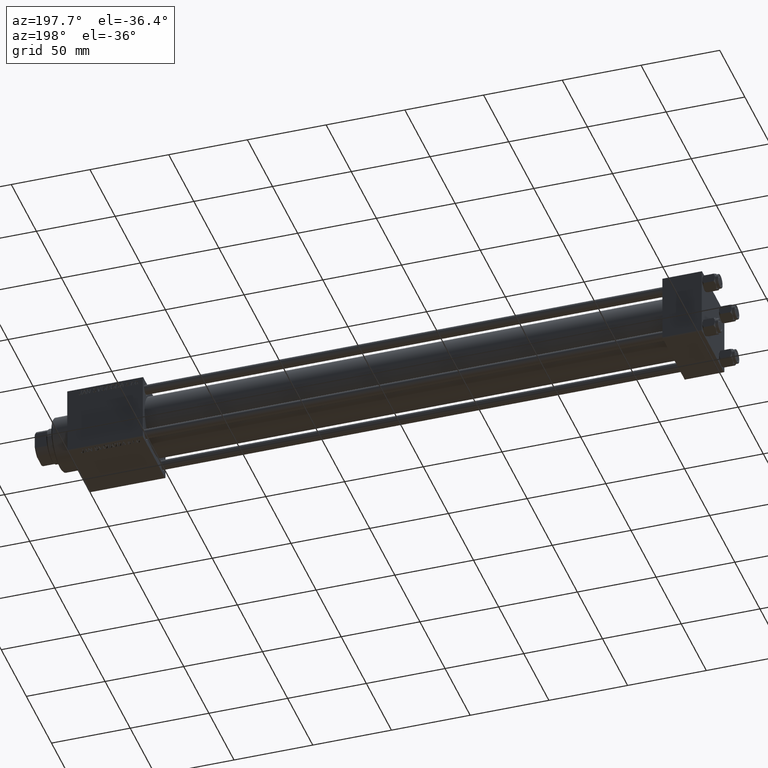
[diagram: clean part render]
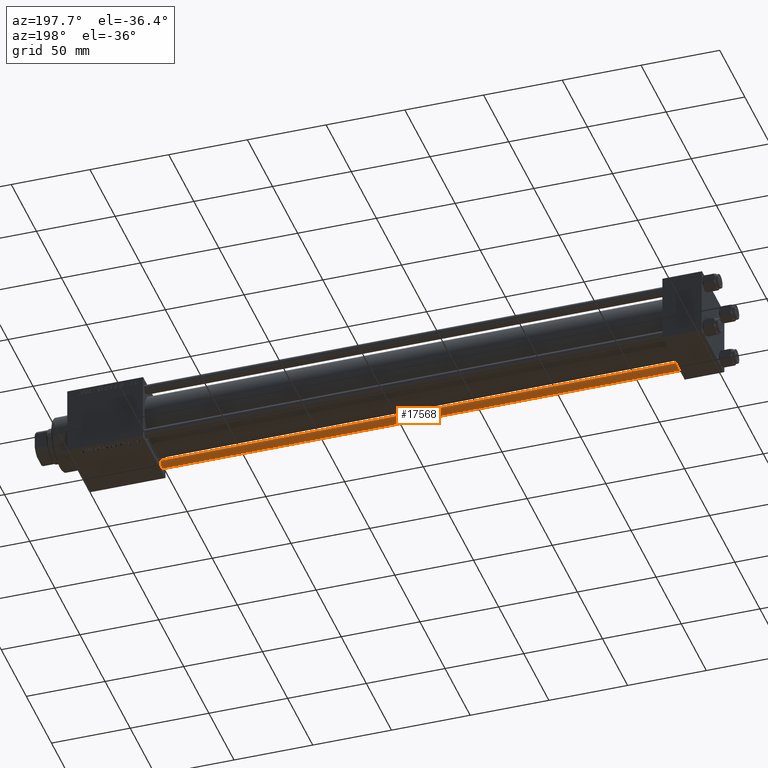
[diagram: same view with one face highlighted and labeled with its STEP entity id]
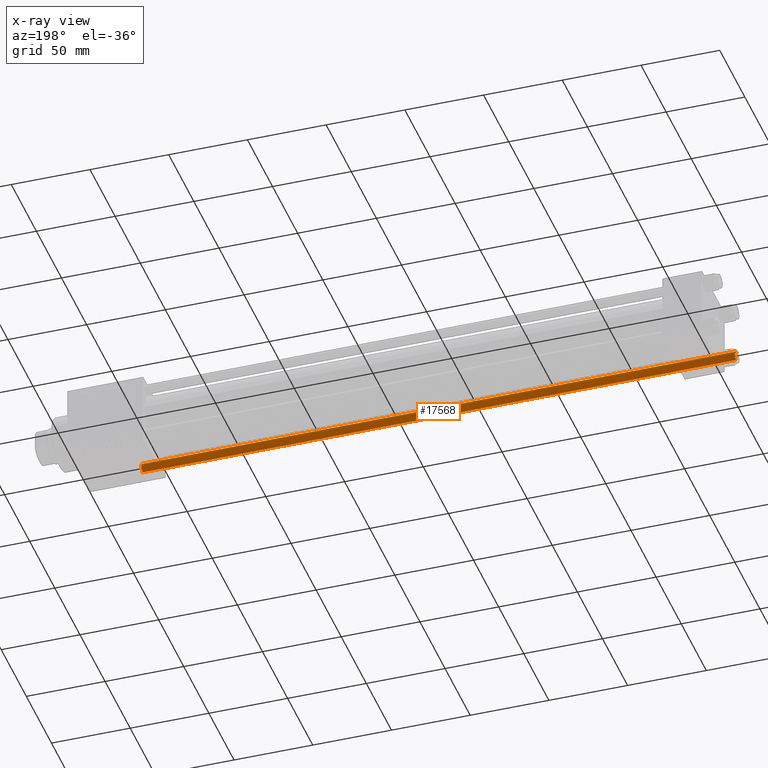
[diagram: x-ray of the same camera — body ghosted, the highlighted face saturated]
A machine part, auxiliary view. The second image highlights one B-rep face of the part: STEP entity #17568.
The next image is the same camera in x-ray: the body ghosted, the highlighted face saturated — about 0% of this face is hidden behind the body in this view.
In plain terms, the highlighted cylindrical surface (edge-blend (fillet) strip) has radius 3 mm, axis along (-1, -0, -0).
Its self-contained STEP definition (entity closure, byte-faithful):
#140 = CARTESIAN_POINT ( 'NONE',  ( -3.000000000000000444, 0.000000000000000000, 378.0000000000000000 ) ) ;
#1564 = CARTESIAN_POINT ( 'NONE',  ( 0.000000000000000000, 0.000000000000000000, 378.0000000000000000 ) ) ;
#1592 = VECTOR ( 'NONE', #48321, 1000.000000000000000 ) ;
#1967 = VERTEX_POINT ( 'NONE', #38825 ) ;
#6675 = AXIS2_PLACEMENT_3D ( 'NONE', #1564, #20859, #32500 ) ;
#7477 = ORIENTED_EDGE ( 'NONE', *, *, #19458, .T. ) ;
#8362 = VERTEX_POINT ( 'NONE', #46407 ) ;
#8747 = CIRCLE ( 'NONE', #13520, 3.000000000000000444 ) ;
#9009 = ORIENTED_EDGE ( 'NONE', *, *, #31446, .T. ) ;
#9580 = CARTESIAN_POINT ( 'NONE',  ( 0.000000000000000000, 0.000000000000000000, 377.5000000000000000 ) ) ;
#11825 = DIRECTION ( 'NONE',  ( -0.000000000000000000, -0.000000000000000000, -1.000000000000000000 ) ) ;
#12981 = CARTESIAN_POINT ( 'NONE',  ( 0.000000000000000000, 0.000000000000000000, 0.5000000000000004441 ) ) ;
#13520 = AXIS2_PLACEMENT_3D ( 'NONE', #9580, #21257, #13893 ) ;
#13893 = DIRECTION ( 'NONE',  ( 1.000000000000000000, 0.000000000000000000, 0.000000000000000000 ) ) ;
#16139 = VERTEX_POINT ( 'NONE', #25252 ) ;
#16807 = FACE_OUTER_BOUND ( 'NONE', #26747, .T. ) ;
#17044 = DIRECTION ( 'NONE',  ( -0.000000000000000000, -0.000000000000000000, 1.000000000000000000 ) ) ;
#17568 = ADVANCED_FACE ( 'NONE', ( #16807 ), #32261, .T. ) ;
#19458 = EDGE_CURVE ( 'NONE', #16139, #40564, #50127, .T. ) ;
#20214 = LINE ( 'NONE', #35670, #1592 ) ;
#20513 = VECTOR ( 'NONE', #11825, 1000.000000000000000 ) ;
#20859 = DIRECTION ( 'NONE',  ( -0.000000000000000000, -0.000000000000000000, -1.000000000000000000 ) ) ;
#21257 = DIRECTION ( 'NONE',  ( 0.000000000000000000, 0.000000000000000000, -1.000000000000000000 ) ) ;
#21721 = CARTESIAN_POINT ( 'NONE',  ( -3.000000000000000444, 0.000000000000000000, 0.5000000000000004441 ) ) ;
#25252 = CARTESIAN_POINT ( 'NONE',  ( -3.000000000000000444, 0.000000000000000000, 377.5000000000000000 ) ) ;
#26747 = EDGE_LOOP ( 'NONE', ( #34706, #9009, #7477, #44467 ) ) ;
#28451 = DIRECTION ( 'NONE',  ( 1.000000000000000000, 0.000000000000000000, 0.000000000000000000 ) ) ;
#31446 = EDGE_CURVE ( 'NONE', #1967, #16139, #8747, .T. ) ;
#32261 = CYLINDRICAL_SURFACE ( 'NONE', #6675, 3.000000000000000444 ) ;
#32500 = DIRECTION ( 'NONE',  ( -1.000000000000000000, 0.000000000000000000, 0.000000000000000000 ) ) ;
#34706 = ORIENTED_EDGE ( 'NONE', *, *, #39855, .F. ) ;
#34776 = EDGE_CURVE ( 'NONE', #40564, #8362, #45998, .T. ) ;
#35670 = CARTESIAN_POINT ( 'NONE',  ( 3.000000000000000444, 3.673940397442060361E-16, 378.0000000000000000 ) ) ;
#38825 = CARTESIAN_POINT ( 'NONE',  ( 3.000000000000000444, 3.673940397442060361E-16, 377.5000000000000000 ) ) ;
#39855 = EDGE_CURVE ( 'NONE', #1967, #8362, #20214, .T. ) ;
#40564 = VERTEX_POINT ( 'NONE', #21721 ) ;
#41106 = AXIS2_PLACEMENT_3D ( 'NONE', #12981, #17044, #28451 ) ;
#44467 = ORIENTED_EDGE ( 'NONE', *, *, #34776, .T. ) ;
#45998 = CIRCLE ( 'NONE', #41106, 3.000000000000000444 ) ;
#46407 = CARTESIAN_POINT ( 'NONE',  ( 3.000000000000000444, 3.673940397442060361E-16, 0.5000000000000004441 ) ) ;
#48321 = DIRECTION ( 'NONE',  ( -0.000000000000000000, -0.000000000000000000, -1.000000000000000000 ) ) ;
#50127 = LINE ( 'NONE', #140, #20513 ) ;